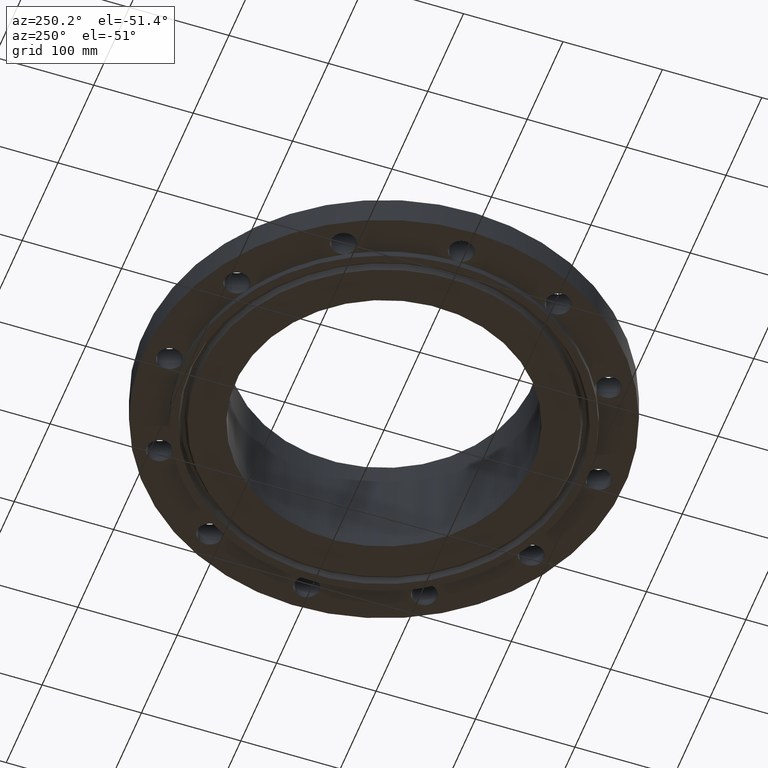
[diagram: clean part render]
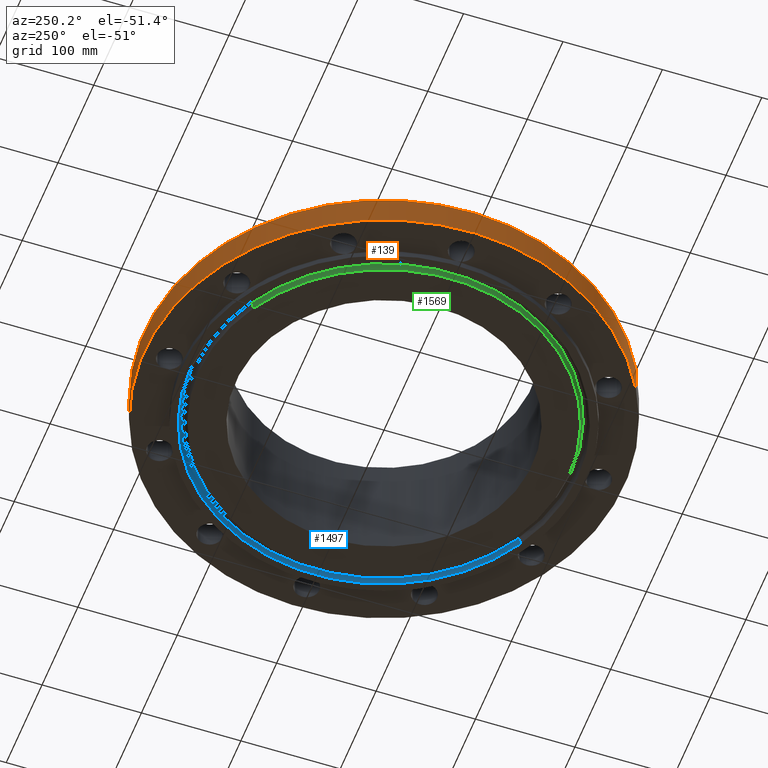
[diagram: same view with three faces highlighted in distinct colors, each labeled with its STEP entity id]
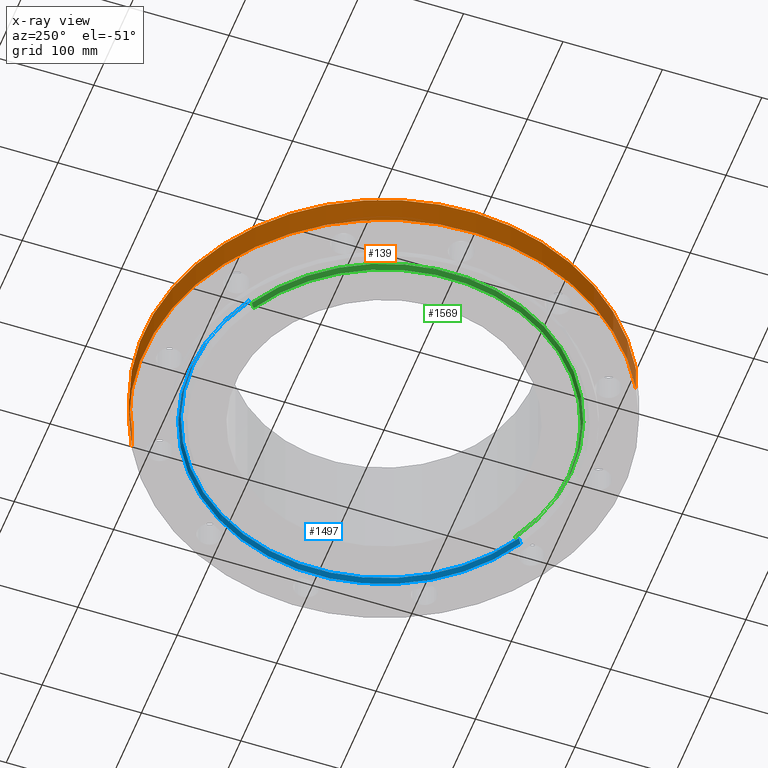
[diagram: x-ray of the same camera — body ghosted, the three highlighted faces saturated]
A machine part, auxiliary view with three faces highlighted in distinct colors.
The next image is the same camera in x-ray (body ghosted, the three faces saturated) — at least one of them is partly hidden behind the body in this view.
Their STEP definitions:

[orange] entity #139 — the highlighted cylindrical surface (partial cylindrical patch) has radius 241.3 mm, axis along (0, 0, -1).
#103=AXIS2_PLACEMENT_3D('Cylinder Axis2P3D',#100,#101,#102) ;
#107=AXIS2_PLACEMENT_3D('Circle Axis2P3D',#105,#106,$) ;
#123=AXIS2_PLACEMENT_3D('Circle Axis2P3D',#121,#122,$) ;
#100=CARTESIAN_POINT('Axis2P3D Location',(0.,0.,2.09500000001)) ;
#105=CARTESIAN_POINT('Axis2P3D Location',(0.,0.,1.39870617276E-015)) ;
#109=CARTESIAN_POINT('Vertex',(-4.55454261676,-8.33703433799,1.39870617276E-015)) ;
#111=CARTESIAN_POINT('Vertex',(4.55454261676,8.33703433799,1.39870617276E-015)) ;
#114=CARTESIAN_POINT('Line Origine',(-4.55454261676,-8.33703433799,0.595000000002)) ;
#118=CARTESIAN_POINT('Vertex',(-4.55454261676,-8.33703433799,1.19)) ;
#121=CARTESIAN_POINT('Axis2P3D Location',(0.,0.,1.19)) ;
#125=CARTESIAN_POINT('Vertex',(4.55454261676,8.33703433799,1.19)) ;
#128=CARTESIAN_POINT('Line Origine',(4.55454261676,8.33703433799,0.595000000002)) ;
#101=DIRECTION('Axis2P3D Direction',(0.,0.,-0.0393700787402)) ;
#102=DIRECTION('Axis2P3D XDirection',(0.0188750212049,0.0345504945626,0.)) ;
#106=DIRECTION('Axis2P3D Direction',(0.,0.,-0.0393700787402)) ;
#115=DIRECTION('Vector Direction',(0.,0.,-0.0393700787402)) ;
#122=DIRECTION('Axis2P3D Direction',(0.,0.,-0.0393700787402)) ;
#129=DIRECTION('Vector Direction',(0.,0.,-0.0393700787402)) ;
#116=VECTOR('Line Direction',#115,0.0393700787402) ;
#130=VECTOR('Line Direction',#129,0.0393700787402) ;
#134=ORIENTED_EDGE('',*,*,#113,.F.) ;
#135=ORIENTED_EDGE('',*,*,#120,.T.) ;
#136=ORIENTED_EDGE('',*,*,#127,.T.) ;
#137=ORIENTED_EDGE('',*,*,#132,.F.) ;
#139=ADVANCED_FACE('PartBody',(#138),#104,.T.) ;
#108=CIRCLE('generated circle',#107,9.50000000004) ;
#124=CIRCLE('generated circle',#123,9.50000000004) ;
#104=CYLINDRICAL_SURFACE('generated cylinder',#103,9.50000000004) ;
#113=EDGE_CURVE('',#110,#112,#108,.T.) ;
#120=EDGE_CURVE('',#110,#119,#117,.F.) ;
#127=EDGE_CURVE('',#119,#126,#124,.T.) ;
#132=EDGE_CURVE('',#112,#126,#131,.F.) ;
#133=EDGE_LOOP('',(#134,#135,#136,#137)) ;
#138=FACE_OUTER_BOUND('',#133,.T.) ;
#117=LINE('Line',#114,#116) ;
#131=LINE('Line',#128,#130) ;
#110=VERTEX_POINT('',#109) ;
#112=VERTEX_POINT('',#111) ;
#119=VERTEX_POINT('',#118) ;
#126=VERTEX_POINT('',#125) ;

[blue] entity #1497 — the highlighted conical surface has half-angle 23 deg.
#1358=AXIS2_PLACEMENT_3D('Circle Axis2P3D',#1356,#1357,$) ;
#1432=AXIS2_PLACEMENT_3D('Cone Axis2P3D',#1429,#1430,#1431) ;
#1453=AXIS2_PLACEMENT_3D('Circle Axis2P3D',#1451,#1452,$) ;
#1351=CARTESIAN_POINT('Vertex',(3.67809280399,-6.73270371703,-0.250000000001)) ;
#1353=CARTESIAN_POINT('Vertex',(-3.67809280399,6.73270371703,-0.250000000001)) ;
#1356=CARTESIAN_POINT('Axis2P3D Location',(-2.79741234551E-016,1.1189649382E-015,-0.250000000001)) ;
#1398=CARTESIAN_POINT('Vertex',(-3.63109143382,6.64666828602,-0.0190396522348)) ;
#1400=CARTESIAN_POINT('Vertex',(3.63109143382,-6.64666828602,-0.0190396522348)) ;
#1429=CARTESIAN_POINT('Axis2P3D Location',(0.,0.,-0.0190396522348)) ;
#1434=CARTESIAN_POINT('Line Origine',(-3.65459211891,6.68968600153,-0.134519826118)) ;
#1439=CARTESIAN_POINT('Line Origine',(3.65459211891,-6.68968600153,-0.134519826118)) ;
#1451=CARTESIAN_POINT('Axis2P3D Location',(0.,0.,-0.0190396522348)) ;
#1357=DIRECTION('Axis2P3D Direction',(0.,0.,-0.0393700787402)) ;
#1430=DIRECTION('Axis2P3D Direction',(-0.,-0.,-0.0393700787402)) ;
#1431=DIRECTION('Axis2P3D XDirection',(-0.0188750212049,0.0345504945626,0.)) ;
#1435=DIRECTION('Vector Direction',(-0.00737505833565,0.0134999537303,-0.0362403485611)) ;
#1440=DIRECTION('Vector Direction',(0.00737505833565,-0.0134999537303,-0.0362403485611)) ;
#1452=DIRECTION('Axis2P3D Direction',(0.,0.,0.0393700787402)) ;
#1436=VECTOR('Line Direction',#1435,0.0393700787402) ;
#1441=VECTOR('Line Direction',#1440,0.0393700787402) ;
#1492=ORIENTED_EDGE('',*,*,#1360,.T.) ;
#1493=ORIENTED_EDGE('',*,*,#1443,.T.) ;
#1494=ORIENTED_EDGE('',*,*,#1455,.T.) ;
#1495=ORIENTED_EDGE('',*,*,#1438,.F.) ;
#1497=ADVANCED_FACE('PartBody',(#1496),#1433,.F.) ;
#1359=CIRCLE('generated circle',#1358,7.67187500003) ;
#1454=CIRCLE('generated circle',#1453,7.57383814886) ;
#1433=CONICAL_SURFACE('Cone',#1432,7.57383814886,0.401425727959) ;
#1360=EDGE_CURVE('',#1354,#1352,#1359,.T.) ;
#1438=EDGE_CURVE('',#1354,#1399,#1437,.F.) ;
#1443=EDGE_CURVE('',#1352,#1401,#1442,.F.) ;
#1455=EDGE_CURVE('',#1401,#1399,#1454,.T.) ;
#1491=EDGE_LOOP('',(#1492,#1493,#1494,#1495)) ;
#1496=FACE_OUTER_BOUND('',#1491,.T.) ;
#1437=LINE('Line',#1434,#1436) ;
#1442=LINE('Line',#1439,#1441) ;
#1352=VERTEX_POINT('',#1351) ;
#1354=VERTEX_POINT('',#1353) ;
#1399=VERTEX_POINT('',#1398) ;
#1401=VERTEX_POINT('',#1400) ;

[green] entity #1569 — the highlighted conical surface has half-angle 23 deg.
#1377=AXIS2_PLACEMENT_3D('Circle Axis2P3D',#1375,#1376,$) ;
#1531=AXIS2_PLACEMENT_3D('Circle Axis2P3D',#1529,#1530,$) ;
#1544=AXIS2_PLACEMENT_3D('Cone Axis2P3D',#1541,#1542,#1543) ;
#1370=CARTESIAN_POINT('Vertex',(-3.5132902751,6.43103471138,-0.250000000001)) ;
#1372=CARTESIAN_POINT('Vertex',(3.5132902751,-6.43103471138,-0.250000000001)) ;
#1375=CARTESIAN_POINT('Axis2P3D Location',(0.,1.1189649382E-015,-0.250000000001)) ;
#1507=CARTESIAN_POINT('Vertex',(3.56029164527,-6.51707014239,-0.0190396522348)) ;
#1514=CARTESIAN_POINT('Vertex',(-3.56029164527,6.51707014239,-0.0190396522348)) ;
#1529=CARTESIAN_POINT('Axis2P3D Location',(0.,0.,-0.0190396522348)) ;
#1541=CARTESIAN_POINT('Axis2P3D Location',(0.,0.,-0.310000000001)) ;
#1546=CARTESIAN_POINT('Line Origine',(-3.53679096019,6.47405242688,-0.134519826118)) ;
#1551=CARTESIAN_POINT('Line Origine',(3.53679096019,-6.47405242688,-0.134519826118)) ;
#1376=DIRECTION('Axis2P3D Direction',(0.,0.,-0.0393700787402)) ;
#1530=DIRECTION('Axis2P3D Direction',(0.,0.,0.0393700787402)) ;
#1542=DIRECTION('Axis2P3D Direction',(0.,0.,0.0393700787402)) ;
#1543=DIRECTION('Axis2P3D XDirection',(-0.0188750212049,0.0345504945626,0.)) ;
#1547=DIRECTION('Vector Direction',(-0.00737505833565,0.0134999537303,0.0362403485611)) ;
#1552=DIRECTION('Vector Direction',(0.00737505833565,-0.0134999537303,0.0362403485611)) ;
#1548=VECTOR('Line Direction',#1547,0.0393700787402) ;
#1553=VECTOR('Line Direction',#1552,0.0393700787402) ;
#1564=ORIENTED_EDGE('',*,*,#1555,.F.) ;
#1565=ORIENTED_EDGE('',*,*,#1533,.F.) ;
#1566=ORIENTED_EDGE('',*,*,#1550,.T.) ;
#1567=ORIENTED_EDGE('',*,*,#1379,.F.) ;
#1569=ADVANCED_FACE('PartBody',(#1568),#1545,.T.) ;
#1378=CIRCLE('generated circle',#1377,7.32812500003) ;
#1532=CIRCLE('generated circle',#1531,7.4261618512) ;
#1545=CONICAL_SURFACE('Cone',#1544,7.30265651106,0.401425727959) ;
#1379=EDGE_CURVE('',#1373,#1371,#1378,.T.) ;
#1533=EDGE_CURVE('',#1515,#1508,#1532,.T.) ;
#1550=EDGE_CURVE('',#1515,#1371,#1549,.F.) ;
#1555=EDGE_CURVE('',#1508,#1373,#1554,.F.) ;
#1563=EDGE_LOOP('',(#1564,#1565,#1566,#1567)) ;
#1568=FACE_OUTER_BOUND('',#1563,.T.) ;
#1549=LINE('Line',#1546,#1548) ;
#1554=LINE('Line',#1551,#1553) ;
#1371=VERTEX_POINT('',#1370) ;
#1373=VERTEX_POINT('',#1372) ;
#1508=VERTEX_POINT('',#1507) ;
#1515=VERTEX_POINT('',#1514) ;